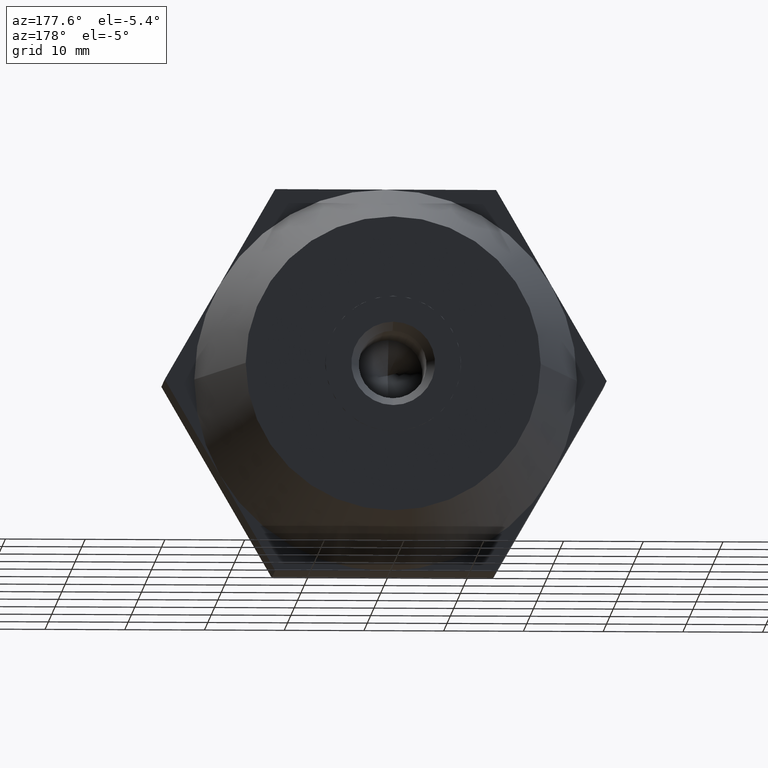
[diagram: clean part render]
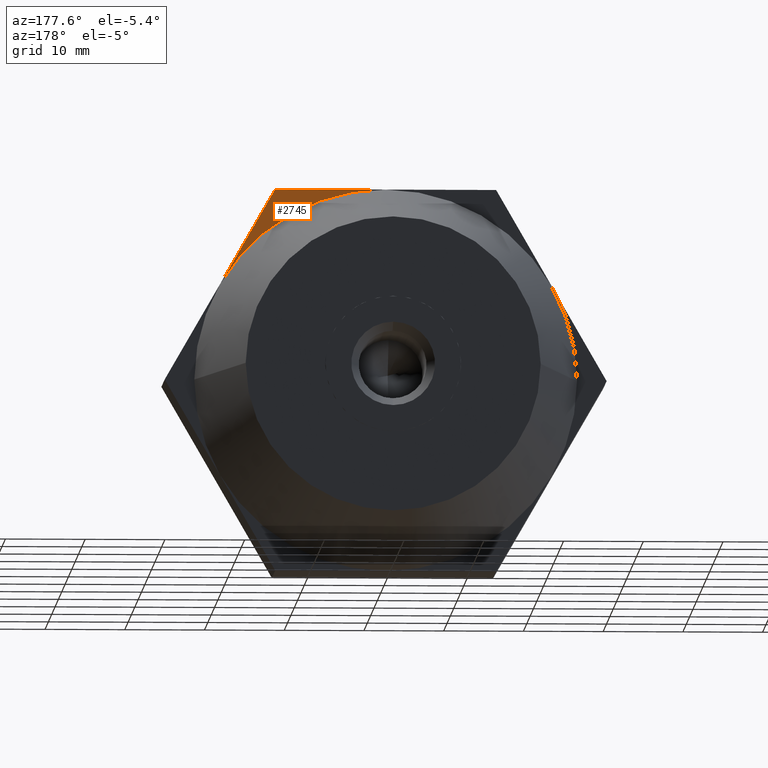
[diagram: same view with one face highlighted and labeled with its STEP entity id]
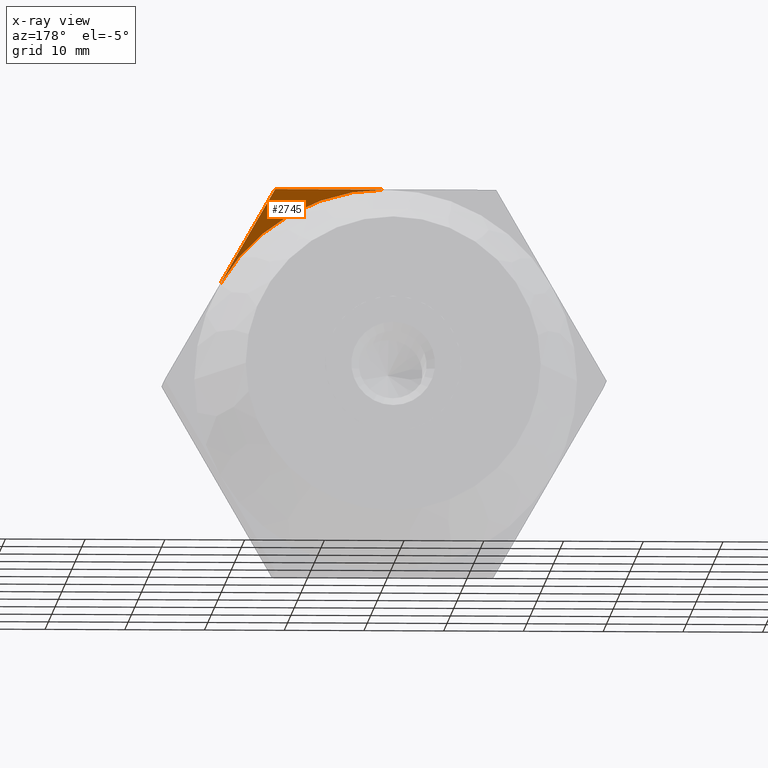
[diagram: x-ray of the same camera — body ghosted, the highlighted face saturated]
A machine part, auxiliary view. The second image highlights one B-rep face of the part: STEP entity #2745.
The next image is the same camera in x-ray: the body ghosted, the highlighted face saturated — about 0% of this face is hidden behind the body in this view.
In plain terms, the highlighted planar face has unit normal (0, 1, 0).
Its self-contained STEP definition (entity closure, byte-faithful):
#98 = EDGE_CURVE ( 'NONE', #3161, #3546, #3456, .T. ) ;
#265 = CARTESIAN_POINT ( 'NONE',  ( -13.85640646055101900, 5.000000000000000000, 24.00000000000000000 ) ) ;
#657 = LINE ( 'NONE', #265, #1986 ) ;
#708 = ORIENTED_EDGE ( 'NONE', *, *, #98, .T. ) ;
#752 = CIRCLE ( 'NONE', #802, 24.00000000000000000 ) ;
#802 = AXIS2_PLACEMENT_3D ( 'NONE', #3204, #1965, #1672 ) ;
#1256 = ORIENTED_EDGE ( 'NONE', *, *, #2160, .F. ) ;
#1505 = ORIENTED_EDGE ( 'NONE', *, *, #1934, .T. ) ;
#1541 = DIRECTION ( 'NONE',  ( 0.4999999999999998900, 0.0000000000000000000, -0.8660254037844387100 ) ) ;
#1672 = DIRECTION ( 'NONE',  ( -1.000000000000000000, -1.445602896647339200E-016, 0.0000000000000000000 ) ) ;
#1721 = AXIS2_PLACEMENT_3D ( 'NONE', #2978, #3621, #2052 ) ;
#1758 = VECTOR ( 'NONE', #1541, 1000.000000000000000 ) ;
#1762 = PLANE ( 'NONE',  #1721 ) ;
#1934 = EDGE_CURVE ( 'NONE', #2090, #3161, #657, .T. ) ;
#1950 = CARTESIAN_POINT ( 'NONE',  ( 13.85640646055101900, 5.000000000000000000, 24.00000000000000000 ) ) ;
#1965 = DIRECTION ( 'NONE',  ( -1.549594883678885000E-016, 1.000000000000000000, 0.0000000000000000000 ) ) ;
#1986 = VECTOR ( 'NONE', #3596, 1000.000000000000000 ) ;
#2052 = DIRECTION ( 'NONE',  ( 0.0000000000000000000, 0.0000000000000000000, 1.000000000000000000 ) ) ;
#2090 = VERTEX_POINT ( 'NONE', #2216 ) ;
#2160 = EDGE_CURVE ( 'NONE', #2090, #3546, #752, .T. ) ;
#2216 = CARTESIAN_POINT ( 'NONE',  ( -4.588507153800969100E-015, 5.000000000000000000, 24.00000000000000000 ) ) ;
#2745 = ADVANCED_FACE ( 'NONE', ( #3031 ), #1762, .T. ) ;
#2978 = CARTESIAN_POINT ( 'NONE',  ( 0.0000000000000000000, 5.000000000000000000, 0.0000000000000000000 ) ) ;
#3031 = FACE_OUTER_BOUND ( 'NONE', #3570, .T. ) ;
#3051 = CARTESIAN_POINT ( 'NONE',  ( 20.78460969082655300, 5.000000000000000000, 12.00000000000000000 ) ) ;
#3161 = VERTEX_POINT ( 'NONE', #1950 ) ;
#3204 = CARTESIAN_POINT ( 'NONE',  ( 1.902710531950845100E-015, 5.000000000000000000, 0.0000000000000000000 ) ) ;
#3456 = LINE ( 'NONE', #3693, #1758 ) ;
#3546 = VERTEX_POINT ( 'NONE', #3051 ) ;
#3570 = EDGE_LOOP ( 'NONE', ( #1256, #1505, #708 ) ) ;
#3596 = DIRECTION ( 'NONE',  ( 1.000000000000000000, 0.0000000000000000000, 1.251928832280965700E-016 ) ) ;
#3621 = DIRECTION ( 'NONE',  ( 0.0000000000000000000, 1.000000000000000000, 0.0000000000000000000 ) ) ;
#3693 = CARTESIAN_POINT ( 'NONE',  ( 13.85640646055101900, 5.000000000000000000, 24.00000000000000000 ) ) ;